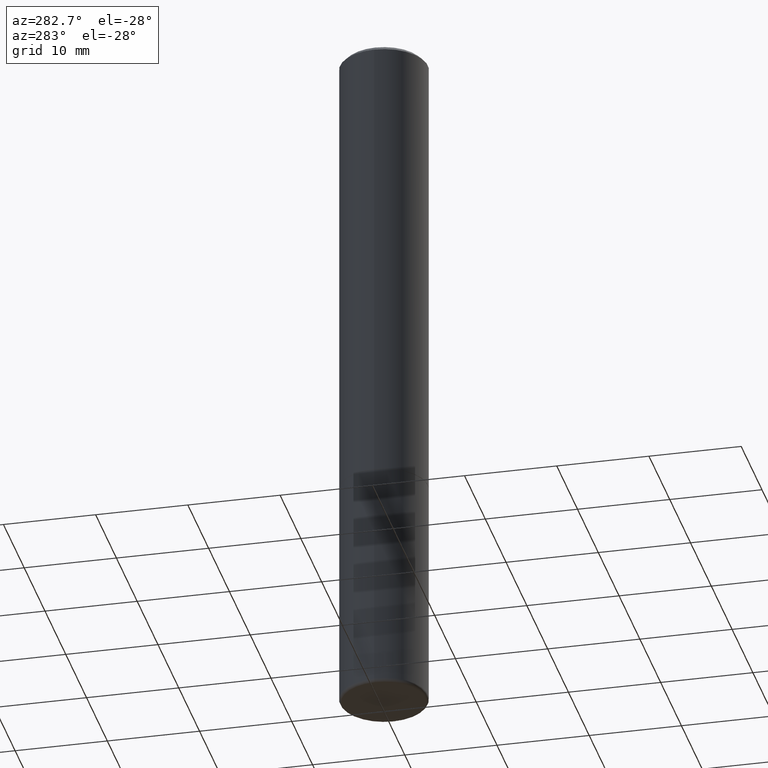
[diagram: clean part render]
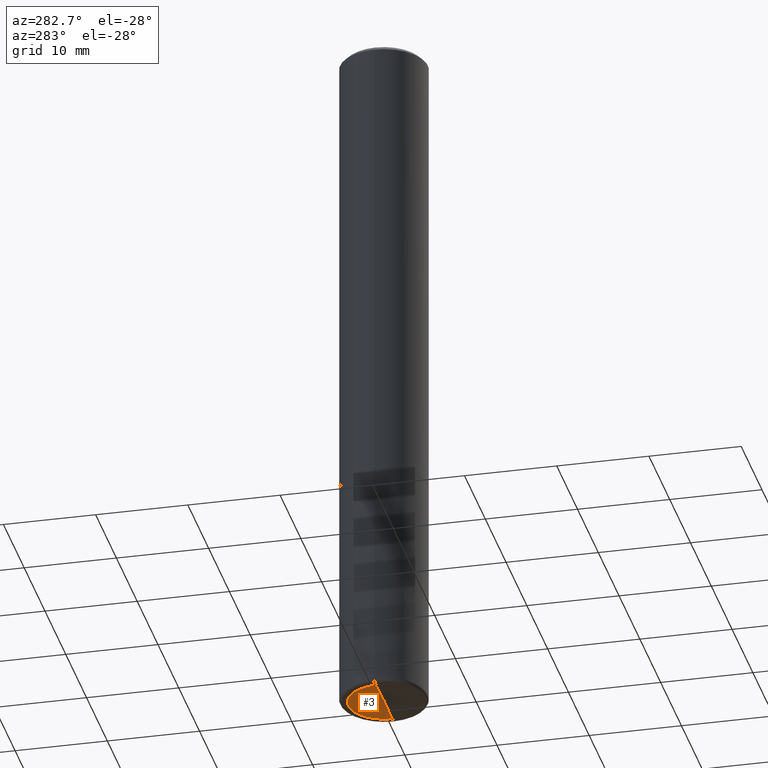
[diagram: same view with one face highlighted and labeled with its STEP entity id]
A machine part, auxiliary view. The second image highlights one B-rep face of the part: STEP entity #3.
In plain terms, the highlighted conical surface has half-angle 88 deg.
Its self-contained STEP definition (entity closure, byte-faithful):
#3 = ADVANCED_FACE ( 'NONE', ( #143 ), #356, .F. ) ;
#5 = CIRCLE ( 'NONE', #76, 0.1523703519675246587 ) ;
#7 = VECTOR ( 'NONE', #341, 39.37007874015748854 ) ;
#29 = LINE ( 'NONE', #221, #7 ) ;
#45 = CARTESIAN_POINT ( 'NONE',  ( -0.1523703519675246587, -9.409838179720655095E-15, -2.999825473552770294 ) ) ;
#57 = EDGE_CURVE ( 'NONE', #271, #70, #29, .T. ) ;
#67 = DIRECTION ( 'NONE',  ( -2.445468806185136597E-29, 3.491481338843145583E-15, 1.000000000000000000 ) ) ;
#70 = VERTEX_POINT ( 'NONE', #45 ) ;
#76 = AXIS2_PLACEMENT_3D ( 'NONE', #237, #67, #389 ) ;
#108 = DIRECTION ( 'NONE',  ( -1.000000000000000000, 6.982962677686263555E-15, 0.000000000000000000 ) ) ;
#132 = CARTESIAN_POINT ( 'NONE',  ( 0.1523703519675246587, -1.151917115528874791E-14, -2.999825473552770294 ) ) ;
#143 = FACE_OUTER_BOUND ( 'NONE', #297, .T. ) ;
#175 = AXIS2_PLACEMENT_3D ( 'NONE', #486, #455, #108 ) ;
#221 = CARTESIAN_POINT ( 'NONE',  ( -0.1523703519675246587, -9.409838179720655095E-15, -2.999825473552770294 ) ) ;
#225 = ORIENTED_EDGE ( 'NONE', *, *, #430, .F. ) ;
#237 = CARTESIAN_POINT ( 'NONE',  ( 7.335979619572855964E-29, -1.047383466069579976E-14, -2.999825473552770294 ) ) ;
#271 = VERTEX_POINT ( 'NONE', #479 ) ;
#275 = VECTOR ( 'NONE', #441, 39.37007874015748854 ) ;
#297 = EDGE_LOOP ( 'NONE', ( #344, #365, #225 ) ) ;
#309 = VERTEX_POINT ( 'NONE', #474 ) ;
#332 = LINE ( 'NONE', #132, #275 ) ;
#341 = DIRECTION ( 'NONE',  ( -0.9993908270190957621, 6.856857904024552526E-15, -0.03489949670250196839 ) ) ;
#344 = ORIENTED_EDGE ( 'NONE', *, *, #392, .F. ) ;
#356 = CONICAL_SURFACE ( 'NONE', #175, 0.1523703519675246587, 1.535889741755009030 ) ;
#365 = ORIENTED_EDGE ( 'NONE', *, *, #57, .T. ) ;
#389 = DIRECTION ( 'NONE',  ( 1.000000000000000000, -6.982962677686263555E-15, 0.000000000000000000 ) ) ;
#392 = EDGE_CURVE ( 'NONE', #271, #309, #332, .T. ) ;
#430 = EDGE_CURVE ( 'NONE', #309, #70, #5, .T. ) ;
#441 = DIRECTION ( 'NONE',  ( 0.9993908270190957621, -6.978169709227545432E-15, -0.03489949670250196839 ) ) ;
#455 = DIRECTION ( 'NONE',  ( 2.445468806185136597E-29, -3.491481338843145583E-15, -1.000000000000000000 ) ) ;
#474 = CARTESIAN_POINT ( 'NONE',  ( 0.1523703519675246587, -1.151917115528874791E-14, -2.999825473552770294 ) ) ;
#479 = CARTESIAN_POINT ( 'NONE',  ( 7.321328423859252495E-29, -1.045760419356129935E-14, -2.994504583614335580 ) ) ;
#486 = CARTESIAN_POINT ( 'NONE',  ( 7.335979619572855964E-29, -1.047383466069579976E-14, -2.999825473552770294 ) ) ;